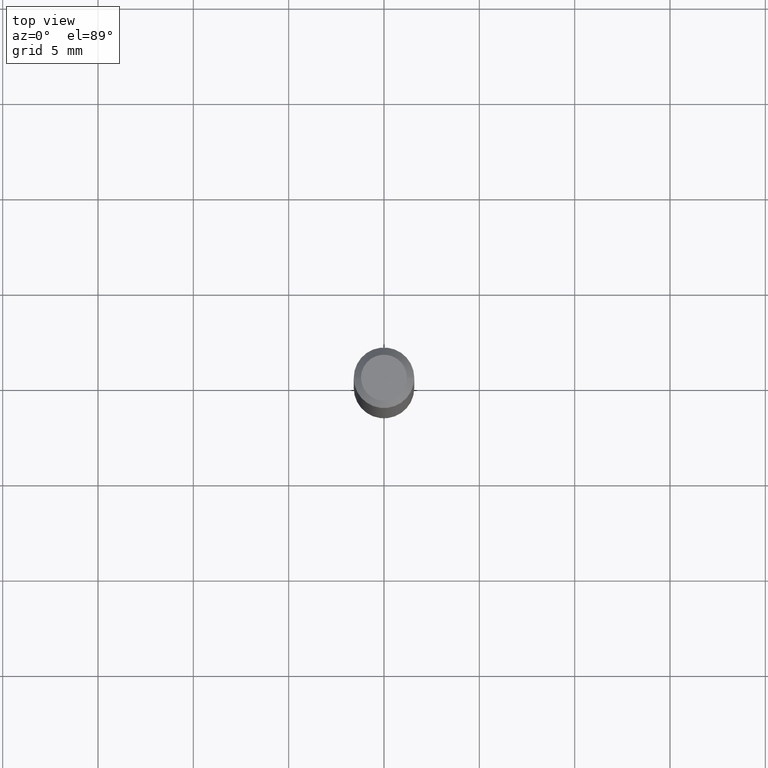
[diagram: clean part render]
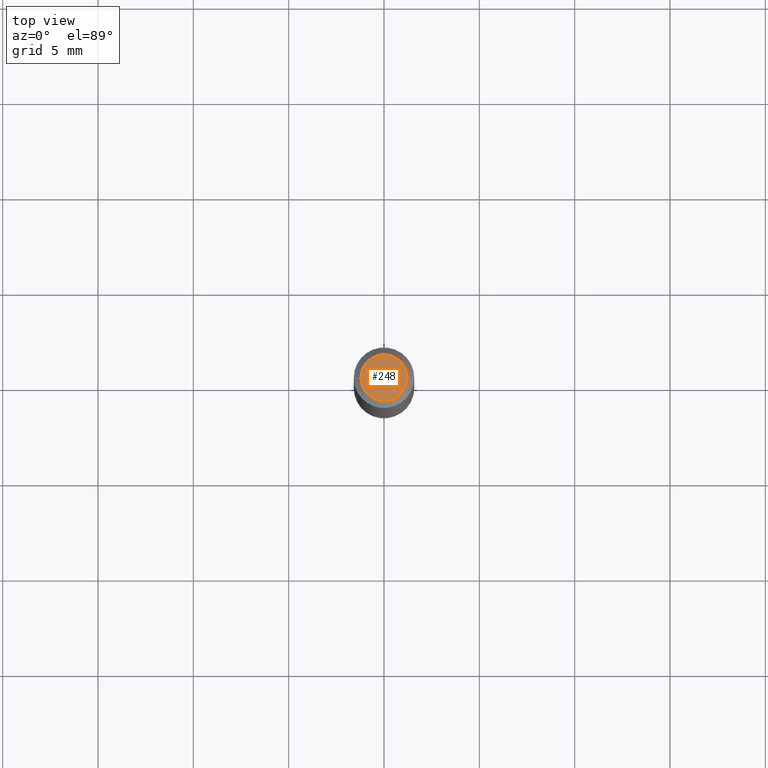
[diagram: same view with one face highlighted and labeled with its STEP entity id]
A machine part, top view. The second image highlights one B-rep face of the part: STEP entity #248.
In plain terms, the highlighted planar face has unit normal (0, -0, -1).
Its self-contained STEP definition (entity closure, byte-faithful):
#26 = DIRECTION ( 'NONE',  ( -2.445468806185136597E-29, 3.491481338843145583E-15, 1.000000000000000000 ) ) ;
#28 = ORIENTED_EDGE ( 'NONE', *, *, #29, .T. ) ;
#29 = EDGE_CURVE ( 'NONE', #227, #293, #218, .T. ) ;
#82 = EDGE_LOOP ( 'NONE', ( #406, #28 ) ) ;
#105 = DIRECTION ( 'NONE',  ( -2.445468806185136597E-29, 3.491481338843145583E-15, 1.000000000000000000 ) ) ;
#139 = CARTESIAN_POINT ( 'NONE',  ( -0.04749999999999999362, 3.578768372314202617E-16, -4.684051019975790718E-16 ) ) ;
#147 = PLANE ( 'NONE',  #447 ) ;
#152 = FACE_OUTER_BOUND ( 'NONE', #82, .T. ) ;
#164 = CARTESIAN_POINT ( 'NONE',  ( 1.145470065593040868E-44, -1.635427672643458845E-30, -4.684051019975766066E-16 ) ) ;
#218 = CIRCLE ( 'NONE', #426, 0.04749999999999999362 ) ;
#226 = CARTESIAN_POINT ( 'NONE',  ( 3.316907271900976096E-16, 0.04749999999999999362, -4.000479145938377490E-16 ) ) ;
#227 = VERTEX_POINT ( 'NONE', #392 ) ;
#244 = CIRCLE ( 'NONE', #439, 0.04749999999999999362 ) ;
#248 = ADVANCED_FACE ( 'NONE', ( #152 ), #147, .F. ) ;
#259 = DIRECTION ( 'NONE',  ( 2.438088387897960049E-29, -3.491481338843145188E-15, -1.000000000000000000 ) ) ;
#269 = DIRECTION ( 'NONE',  ( 1.000000000000000000, -6.982962677686267499E-15, 4.852736867747366768E-29 ) ) ;
#274 = EDGE_CURVE ( 'NONE', #293, #227, #244, .T. ) ;
#293 = VERTEX_POINT ( 'NONE', #139 ) ;
#305 = DIRECTION ( 'NONE',  ( 1.000000000000000000, -6.982962677686267499E-15, 4.852736867747366768E-29 ) ) ;
#392 = CARTESIAN_POINT ( 'NONE',  ( 0.04749999999999999362, -4.035134999187586019E-16, -4.684051019975741414E-16 ) ) ;
#399 = DIRECTION ( 'NONE',  ( -1.000000000000000000, 6.982962677686265922E-15, -4.876176775795935793E-29 ) ) ;
#406 = ORIENTED_EDGE ( 'NONE', *, *, #274, .T. ) ;
#426 = AXIS2_PLACEMENT_3D ( 'NONE', #449, #26, #269 ) ;
#439 = AXIS2_PLACEMENT_3D ( 'NONE', #164, #105, #305 ) ;
#447 = AXIS2_PLACEMENT_3D ( 'NONE', #226, #259, #399 ) ;
#449 = CARTESIAN_POINT ( 'NONE',  ( 1.145470065593040868E-44, -1.635427672643458845E-30, -4.684051019975766066E-16 ) ) ;